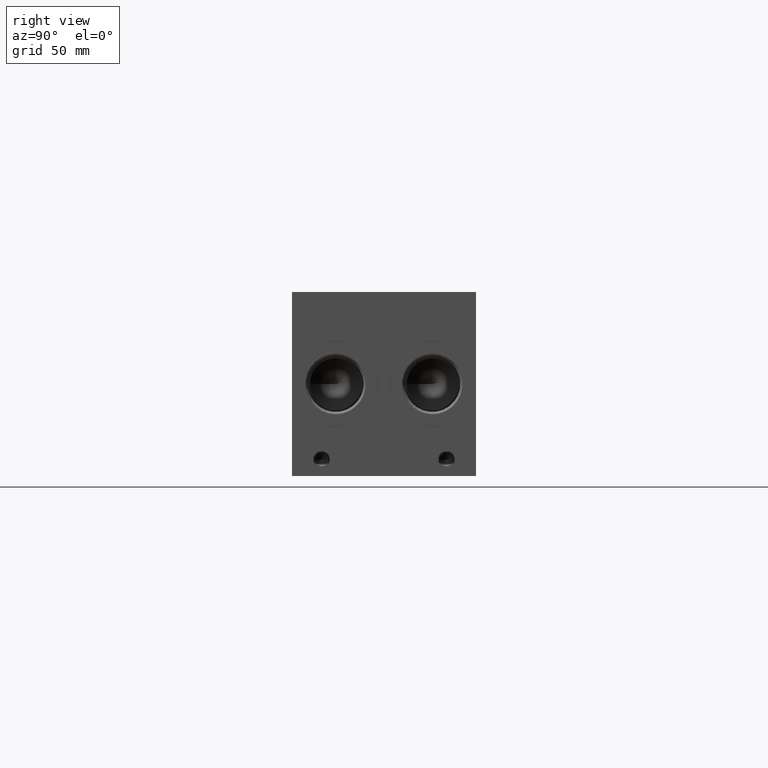
[diagram: clean part render]
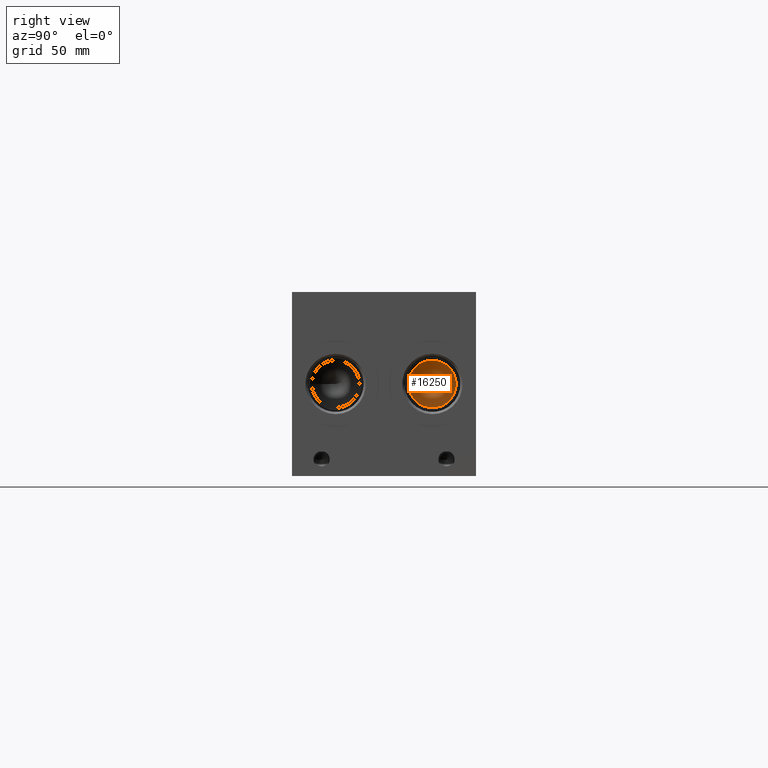
[diagram: same view with one face highlighted and labeled with its STEP entity id]
A machine part, right view. The second image highlights one B-rep face of the part: STEP entity #16250.
In plain terms, the highlighted conical surface has half-angle 60 deg.
Its self-contained STEP definition (entity closure, byte-faithful):
#20=CONICAL_SURFACE('',#16995,5.7531,1.0471975511966);
#303=CIRCLE('',#16996,11.5062);
#304=CIRCLE('',#16997,11.5062);
#2065=FACE_OUTER_BOUND('',#3001,.T.);
#3001=EDGE_LOOP('',(#13353,#13354,#13355,#13356));
#4546=LINE('',#27356,#5964);
#5964=VECTOR('',#19830,5.7531);
#7306=VERTEX_POINT('',#27352);
#7307=VERTEX_POINT('',#27353);
#7308=VERTEX_POINT('',#27355);
#9442=EDGE_CURVE('',#7306,#7307,#303,.T.);
#9443=EDGE_CURVE('',#7307,#7308,#4546,.T.);
#9444=EDGE_CURVE('',#7307,#7306,#304,.T.);
#13353=ORIENTED_EDGE('',*,*,#9442,.T.);
#13354=ORIENTED_EDGE('',*,*,#9443,.T.);
#13355=ORIENTED_EDGE('',*,*,#9443,.F.);
#13356=ORIENTED_EDGE('',*,*,#9444,.T.);
#16250=ADVANCED_FACE('',(#2065),#20,.F.);
#16995=AXIS2_PLACEMENT_3D('',#27351,#19826,#19827);
#16996=AXIS2_PLACEMENT_3D('',#27354,#19828,#19829);
#16997=AXIS2_PLACEMENT_3D('',#27357,#19831,#19832);
#19826=DIRECTION('center_axis',(1.,0.,0.));
#19827=DIRECTION('ref_axis',(0.,1.,0.));
#19828=DIRECTION('center_axis',(1.,0.,0.));
#19829=DIRECTION('ref_axis',(0.,1.,0.));
#19830=DIRECTION('',(-0.5,0.866025403784439,1.06057523872491E-16));
#19831=DIRECTION('center_axis',(1.,0.,0.));
#19832=DIRECTION('ref_axis',(0.,1.,0.));
#27351=CARTESIAN_POINT('Origin',(295.890446166325,67.818,44.45));
#27352=CARTESIAN_POINT('',(299.212,79.3242,44.45));
#27353=CARTESIAN_POINT('',(299.212,56.3118,44.45));
#27354=CARTESIAN_POINT('Origin',(299.212,67.818,44.45));
#27355=CARTESIAN_POINT('',(292.56889233265,67.818,44.45));
#27356=CARTESIAN_POINT('',(295.890446166325,62.0649,44.45));
#27357=CARTESIAN_POINT('Origin',(299.212,67.818,44.45));